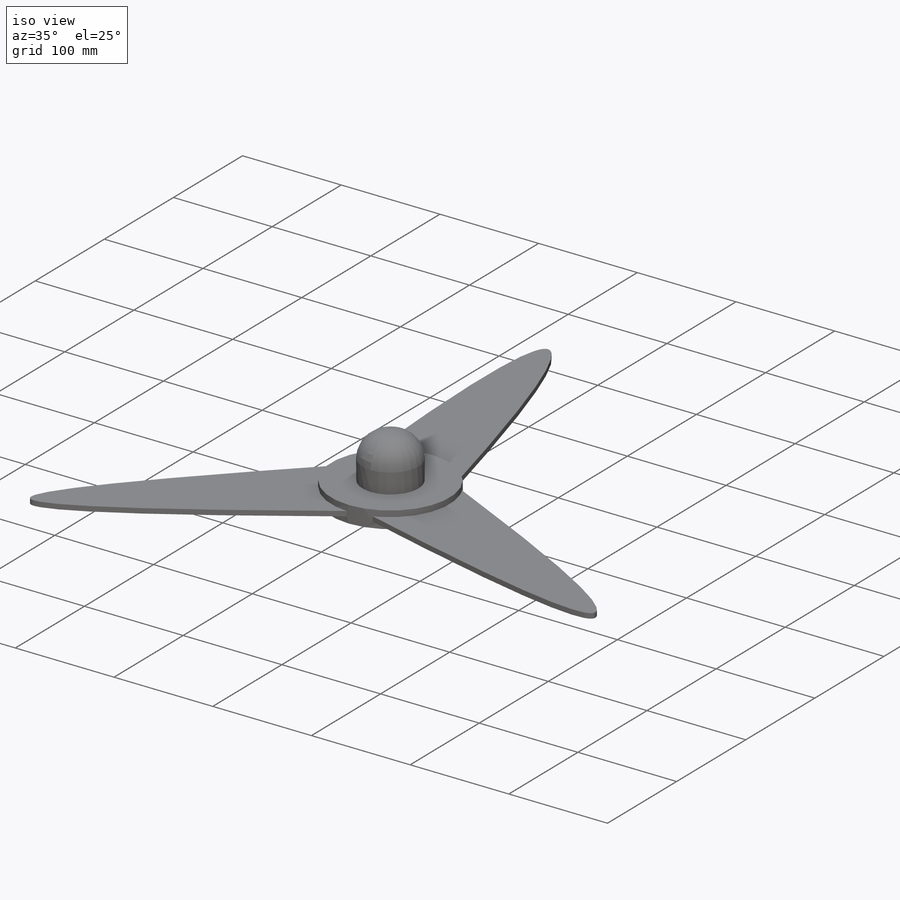
[diagram: iso view]
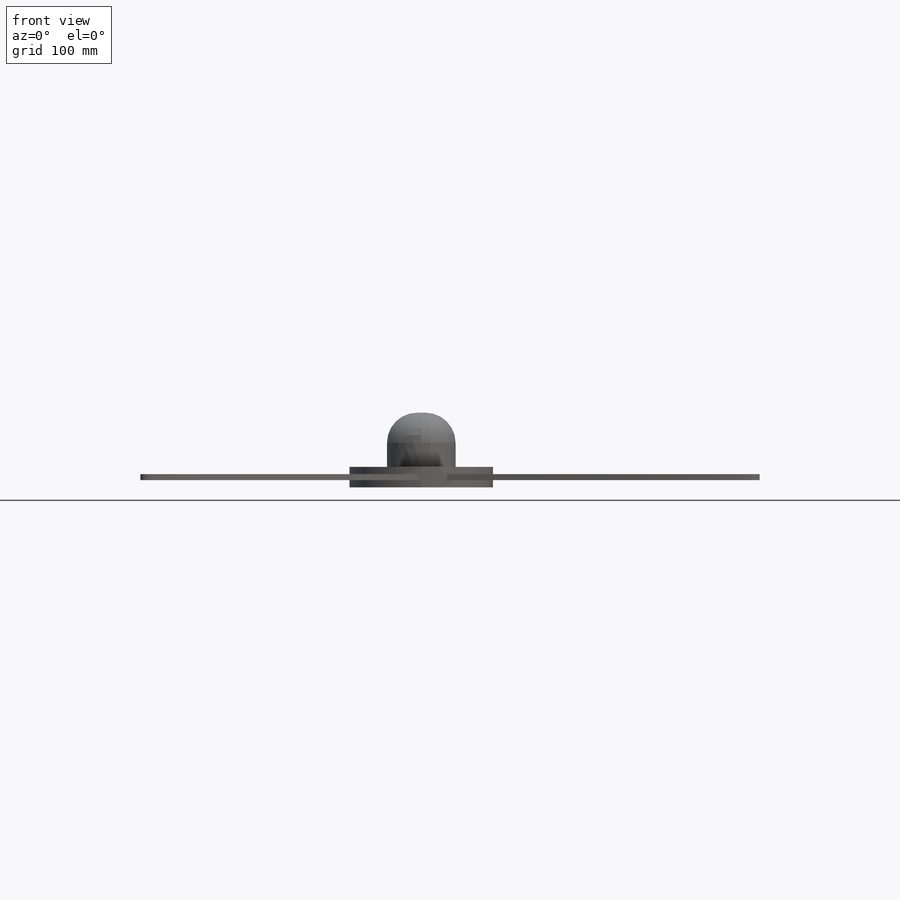
[diagram: front view]
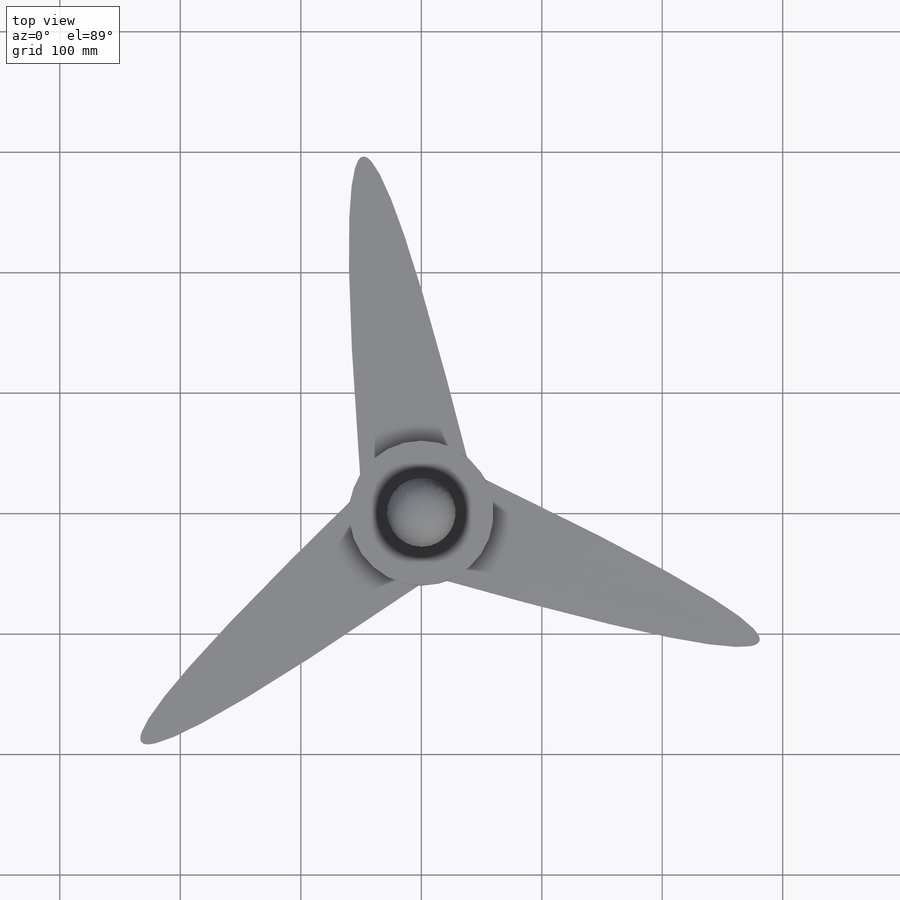
[diagram: top view]
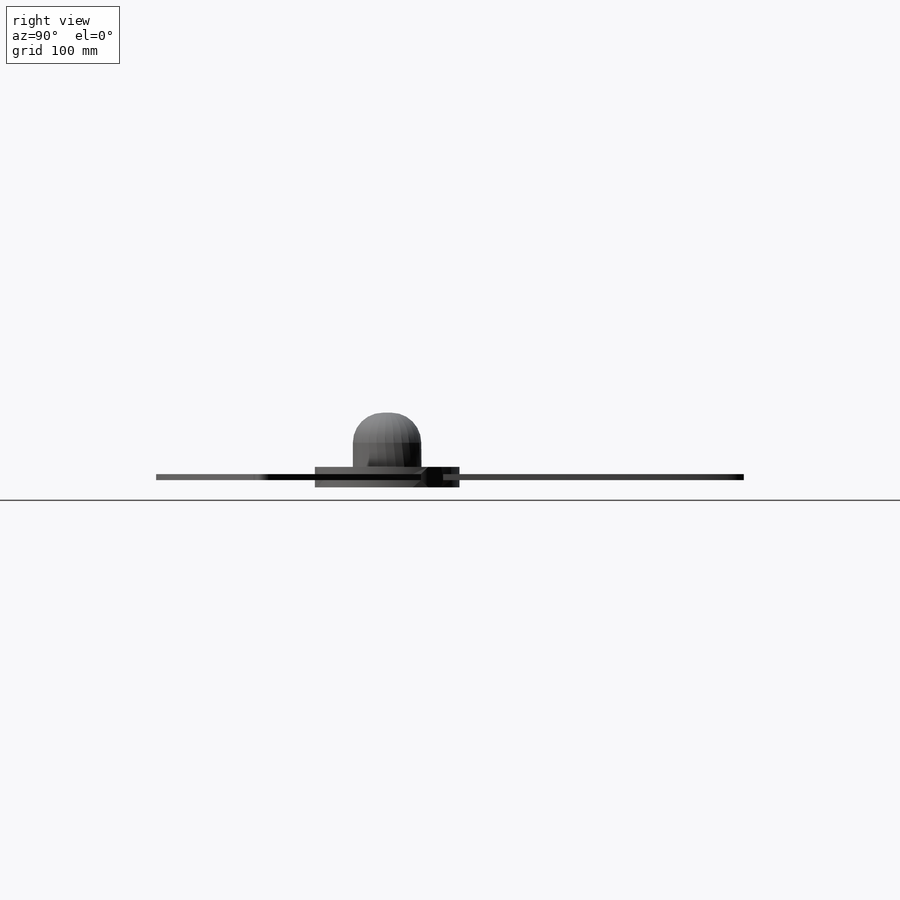
[diagram: right view]
SOLIDWORKS PART (.sldprt)
format: sldprt  version: not decoded by parser v0  size: 181,760 bytes
history: native  units: mm
features: sketch x4, extrude x3, material x1, fillet x1, cut_extrude x1 (+12 scaffold rows collapsed)
feature tree (22):
  scaffold x12  (default folders/planes/origin — collapsed)
  material  "ABS"
  sketch  "Sketch1"  dims[c1.D1=600.0mm c1.D3=120.0mm c1.D2=90.0mm c2.D3=300.0mm c2.D4=300.0mm]
  extrude  "Boss-Extrude1"  Depth=2.5mm
  sketch  "Sketch3"
  extrude  "Boss-Extrude2"  Depth=6mm
  sketch  "Sketch4"  dims[D1=57.0mm]
  sketch  "Sketch5"  dims[D1=48.0mm]
  extrude  "Boss-Extrude5"  Depth=45mm
  fillet  "Fillet4"  Radius=25mm
  cut_extrude  "Cut-Extrude2"  Depth=37mm
decode coverage: 8 of 9 modeling features carry decoded parameters
note: suppression state not decoded; provenance and decode notes live in map.json
